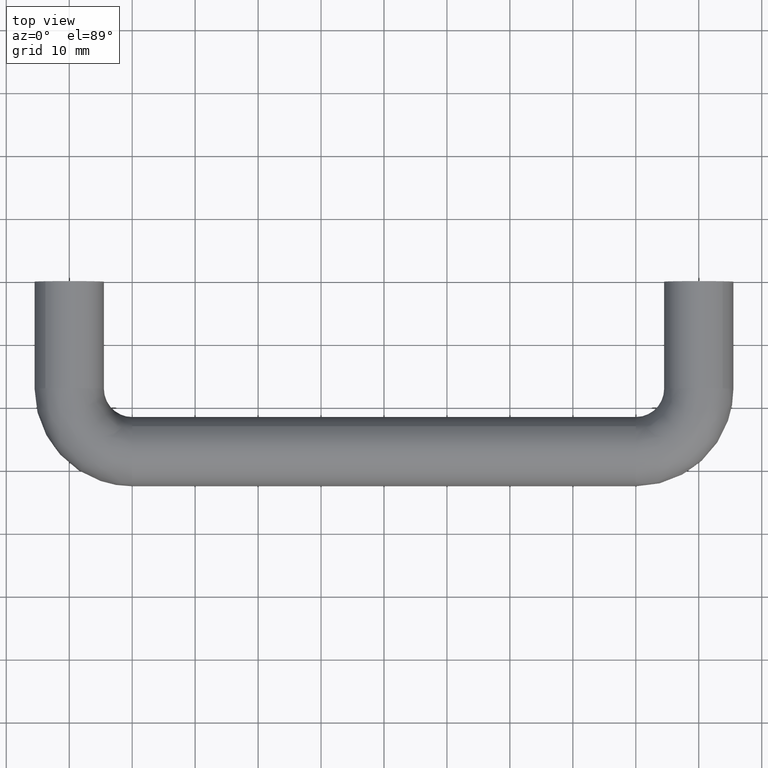
[diagram: clean part render]
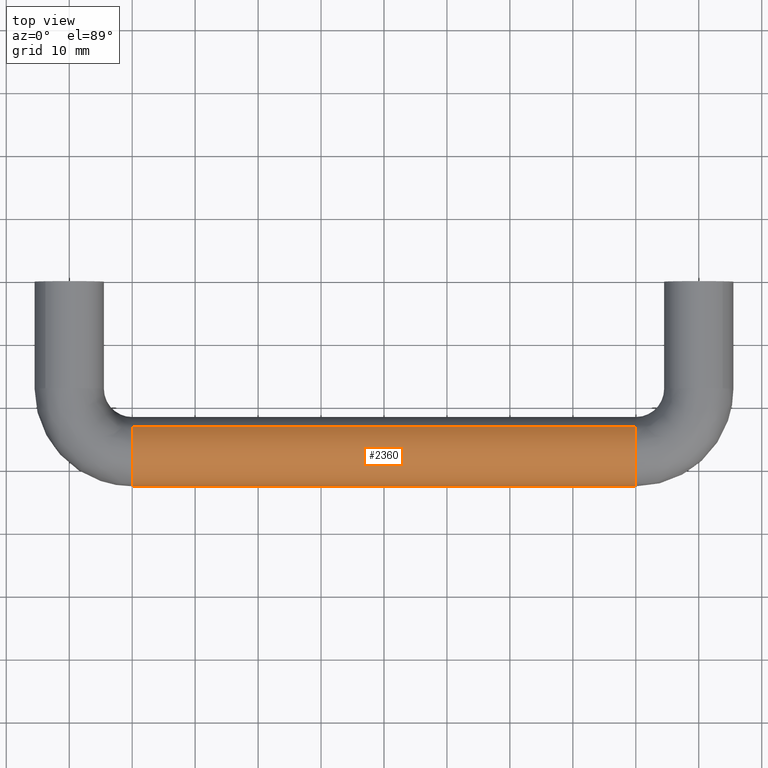
[diagram: same view with one face highlighted and labeled with its STEP entity id]
A machine part, top view. The second image highlights one B-rep face of the part: STEP entity #2360.
In plain terms, the highlighted face is a freeform B-spline surface patch.
Its self-contained STEP definition (entity closure, byte-faithful):
#1941=CARTESIAN_POINT('',(90.000000000055081,-32.499999999989598,-6.735335E-016));
#1942=VERTEX_POINT('',#1941);
#1976=CARTESIAN_POINT('',(89.999997298838110,-23.010440925835070,3.785950130926199));
#1977=VERTEX_POINT('',#1976);
#1987=CARTESIAN_POINT('',(90.0,-26.999999999989601,5.500000000000000));
#1988=VERTEX_POINT('',#1987);
#1989=CARTESIAN_POINT('',(89.999997298838110,-23.010440925835070,3.785950130926199));
#1990=CARTESIAN_POINT('',(89.999997719126227,-23.442259927085161,4.241586009043600));
#1991=CARTESIAN_POINT('',(89.999998453852243,-24.331710963053439,4.903536796363348));
#1992=CARTESIAN_POINT('',(89.999999361382990,-25.744602896904610,5.406932942341743));
#1993=CARTESIAN_POINT('',(89.999999812850533,-26.604778904778630,5.500047198087049));
#1994=CARTESIAN_POINT('',(90.0,-26.999999999989601,5.500000000000000));
#1995=B_SPLINE_CURVE_WITH_KNOTS('',3,(#1989,#1990,#1991,#1992,#1993,#1994),.UNSPECIFIED.,.F.,.U.,(4,1,1,4),(0.000000035012635,1.883143579930301,3.278035622536390,4.463709516612856),.UNSPECIFIED.);
#1996=EDGE_CURVE('',#1977,#1988,#1995,.T.);
#1998=CARTESIAN_POINT('',(90.0,-26.999999999989601,5.500000000000000));
#1999=CARTESIAN_POINT('',(90.000000000001606,-27.314968863294649,5.500014354653619));
#2000=CARTESIAN_POINT('',(90.000000000005528,-28.034924936274571,5.438040029138928));
#2001=CARTESIAN_POINT('',(90.000000000012363,-29.078454290299899,5.135441996454826));
#2002=CARTESIAN_POINT('',(90.000000000019753,-30.095275324665892,4.591928809608756));
#2003=CARTESIAN_POINT('',(90.000000000028976,-30.999981705129279,3.840149156932096));
#2004=CARTESIAN_POINT('',(90.000000000036820,-31.746626997761862,2.871268194823056));
#2005=CARTESIAN_POINT('',(90.000000000046384,-32.340501489975452,1.574704379811676));
#2006=CARTESIAN_POINT('',(90.000000000052211,-32.500328587057233,0.584998334580238));
#2007=CARTESIAN_POINT('',(90.000000000055081,-32.499999999989598,-6.735335E-016));
#2008=B_SPLINE_CURVE_WITH_KNOTS('',3,(#1998,#1999,#2000,#2001,#2002,#2003,#2004,#2005,#2006,#2007),.UNSPECIFIED.,.F.,.U.,(4,1,1,1,1,1,1,4),(0.000000120919900,0.944916700280082,2.159859307134513,3.239793234106409,4.387176248211253,5.669611197551328,6.884557800733372,8.639434005820240),.UNSPECIFIED.);
#2009=EDGE_CURVE('',#1988,#1942,#2008,.T.);
#2044=CARTESIAN_POINT('',(89.999999284689295,-30.989558855102441,-3.785949922371747));
#2045=VERTEX_POINT('',#2044);
#2046=CARTESIAN_POINT('',(90.000000000055081,-32.499999999989598,-6.735335E-016));
#2047=CARTESIAN_POINT('',(90.000000000083730,-32.500066979195850,-0.391477016514653));
#2048=CARTESIAN_POINT('',(89.999999965804946,-32.427699031675580,-1.065657267018800));
#2049=CARTESIAN_POINT('',(89.999999829620748,-32.140159741725469,-2.026982689277916));
#2050=CARTESIAN_POINT('',(89.999999619841759,-31.697222629416711,-2.928436187286721));
#2051=CARTESIAN_POINT('',(89.999999412335413,-31.259081392340299,-3.502026606420794));
#2052=CARTESIAN_POINT('',(89.999999284689295,-30.989558855102441,-3.785949922371747));
#2053=B_SPLINE_CURVE_WITH_KNOTS('',3,(#2046,#2047,#2048,#2049,#2050,#2051,#2052),.UNSPECIFIED.,.F.,.U.,(4,1,1,1,4),(0.000000028705751,1.174423960438574,2.022634612194481,3.001300622780851,4.175724554498073),.UNSPECIFIED.);
#2054=EDGE_CURVE('',#1942,#2045,#2053,.T.);
#2242=CARTESIAN_POINT('',(9.999999999873081,-30.989558854687839,-3.785949922808328));
#2243=VERTEX_POINT('',#2242);
#2244=CARTESIAN_POINT('',(9.999999999873081,-30.989558854687839,-3.785949922808328));
#2245=CARTESIAN_POINT('',(89.999999284689295,-30.989558855102441,-3.785949922371747));
#2246=QUASI_UNIFORM_CURVE('',1,(#2244,#2245),.UNSPECIFIED.,.F.,.U.);
#2247=EDGE_CURVE('',#2243,#2045,#2246,.T.);
#2277=CARTESIAN_POINT('',(9.999999999867605,-23.010440926251359,3.785950131361060));
#2278=VERTEX_POINT('',#2277);
#2288=CARTESIAN_POINT('',(9.999999999867605,-23.010440926251359,3.785950131361060));
#2289=CARTESIAN_POINT('',(89.999997298838110,-23.010440925835070,3.785950130926199));
#2290=QUASI_UNIFORM_CURVE('',1,(#2288,#2289),.UNSPECIFIED.,.F.,.U.);
#2291=EDGE_CURVE('',#2278,#1977,#2290,.T.);
#2298=CARTESIAN_POINT('',(7.999999999736905,-23.010440959422020,3.785950166315646));
#2299=CARTESIAN_POINT('',(7.999999999736907,-26.796391125737667,7.775509206883227));
#2300=CARTESIAN_POINT('',(7.999999999736905,-30.785950166305248,3.989559040567581));
#2301=CARTESIAN_POINT('',(7.999999999736907,-34.775509206872833,0.203608874251935));
#2302=CARTESIAN_POINT('',(7.999999999736905,-30.989559040557179,-3.785950166315646));
#2303=CARTESIAN_POINT('',(92.050000000063037,-23.010440959422020,3.785950166315646));
#2304=CARTESIAN_POINT('',(92.050000000063037,-26.796391125737667,7.775509206883227));
#2305=CARTESIAN_POINT('',(92.050000000063037,-30.785950166305248,3.989559040567581));
#2306=CARTESIAN_POINT('',(92.050000000063037,-34.775509206872833,0.203608874251935));
#2307=CARTESIAN_POINT('',(92.050000000063037,-30.989559040557179,-3.785950166315646));
#2315=(BOUNDED_SURFACE()B_SPLINE_SURFACE(2,1,((#2298,#2303),(#2299,#2304),(#2300,#2305),(#2301,#2306),(#2302,#2307)),.UNSPECIFIED.,.F.,.F.,.U.)B_SPLINE_SURFACE_WITH_KNOTS((3,2,3),(2,2),(0.0,9.112698372208090,18.225396744416180),(0.0,84.050000000326136),.UNSPECIFIED.)GEOMETRIC_REPRESENTATION_ITEM()RATIONAL_B_SPLINE_SURFACE(((1.0,1.0),(0.707106781186548,0.707106781186548),(1.0,1.0),(0.707106781186548,0.707106781186548),(1.0,1.0)))REPRESENTATION_ITEM('')SURFACE());
#2316=ORIENTED_EDGE('',*,*,#2054,.F.);
#2317=ORIENTED_EDGE('',*,*,#2009,.F.);
#2318=ORIENTED_EDGE('',*,*,#1996,.F.);
#2319=ORIENTED_EDGE('',*,*,#2291,.F.);
#2320=CARTESIAN_POINT('',(10.0,-26.999999999989601,5.500000000000000));
#2321=VERTEX_POINT('',#2320);
#2322=CARTESIAN_POINT('',(9.999999999867605,-23.010440926251359,3.785950131361060));
#2323=CARTESIAN_POINT('',(9.999999999879048,-23.250467799035981,4.038920241081647));
#2324=CARTESIAN_POINT('',(9.999999999905830,-23.866867039692281,4.575757044493593));
#2325=CARTESIAN_POINT('',(9.999999999941915,-24.877578573187570,5.120842703011409));
#2326=CARTESIAN_POINT('',(9.999999999974802,-25.977093139127071,5.435645817733579));
#2327=CARTESIAN_POINT('',(9.999999999991887,-26.651271925940240,5.500042449196286));
#2328=CARTESIAN_POINT('',(10.0,-26.999999999989601,5.500000000000000));
#2329=B_SPLINE_CURVE_WITH_KNOTS('',3,(#2322,#2323,#2324,#2325,#2326,#2327,#2328),.UNSPECIFIED.,.F.,.U.,(4,1,1,1,4),(0.000000035016079,1.046180881597005,2.441086099844327,3.417528669427553,4.463709516009164),.UNSPECIFIED.);
#2330=EDGE_CURVE('',#2278,#2321,#2329,.T.);
#2331=ORIENTED_EDGE('',*,*,#2330,.T.);
#2332=CARTESIAN_POINT('',(9.999999999893522,-32.499999999989598,-6.735335E-016));
#2333=VERTEX_POINT('',#2332);
#2334=CARTESIAN_POINT('',(10.0,-26.999999999989601,5.500000000000000));
#2335=CARTESIAN_POINT('',(9.999999999996948,-27.314968421135909,5.500014721346220));
#2336=CARTESIAN_POINT('',(9.999999999989390,-28.034914371888320,5.438017617955295));
#2337=CARTESIAN_POINT('',(9.999999999974449,-29.230713345872701,5.091440074642777));
#2338=CARTESIAN_POINT('',(9.999999999957607,-30.326146239675040,4.443945828187533));
#2339=CARTESIAN_POINT('',(9.999999999942407,-31.123134648145019,3.675489527473059));
#2340=CARTESIAN_POINT('',(9.999999999930537,-31.651332962480399,2.972361551911824));
#2341=CARTESIAN_POINT('',(9.999999999917762,-32.114183056576842,2.119296358087973));
#2342=CARTESIAN_POINT('',(9.999999999904874,-32.429427036728733,1.102423726611293));
#2343=CARTESIAN_POINT('',(9.999999999896794,-32.500024255590283,0.337469225306783));
#2344=CARTESIAN_POINT('',(9.999999999893522,-32.499999999989598,-6.735335E-016));
#2345=B_SPLINE_CURVE_WITH_KNOTS('',3,(#2334,#2335,#2336,#2337,#2338,#2339,#2340,#2341,#2342,#2343,#2344),.UNSPECIFIED.,.F.,.U.,(4,1,1,1,1,1,1,1,4),(0.000000120919900,0.944916700280082,2.159859307134513,3.712276831383561,4.724676596645427,5.467120250703147,6.344582949207419,7.627014869042590,8.639434005820240),.UNSPECIFIED.);
#2346=EDGE_CURVE('',#2321,#2333,#2345,.T.);
#2347=ORIENTED_EDGE('',*,*,#2346,.T.);
#2348=CARTESIAN_POINT('',(9.999999999893522,-32.499999999989598,-6.735335E-016));
#2349=CARTESIAN_POINT('',(9.999999999893532,-32.500062191115617,-0.391475429517151));
#2350=CARTESIAN_POINT('',(9.999999999892346,-32.413729881498782,-1.196141535723296));
#2351=CARTESIAN_POINT('',(9.999999999886278,-31.964951377112531,-2.523068822770479));
#2352=CARTESIAN_POINT('',(9.999999999878563,-31.394033417224051,-3.360203191505379));
#2353=CARTESIAN_POINT('',(9.999999999873081,-30.989558854687839,-3.785949922808328));
#2354=B_SPLINE_CURVE_WITH_KNOTS('',3,(#2348,#2349,#2350,#2351,#2352,#2353),.UNSPECIFIED.,.F.,.U.,(4,1,1,4),(0.000000028704593,1.174423960607256,2.414078846839046,4.175724555100167),.UNSPECIFIED.);
#2355=EDGE_CURVE('',#2333,#2243,#2354,.T.);
#2356=ORIENTED_EDGE('',*,*,#2355,.T.);
#2357=ORIENTED_EDGE('',*,*,#2247,.T.);
#2358=EDGE_LOOP('',(#2316,#2317,#2318,#2319,#2331,#2347,#2356,#2357));
#2359=FACE_OUTER_BOUND('',#2358,.T.);
#2360=ADVANCED_FACE('',(#2359),#2315,.T.);